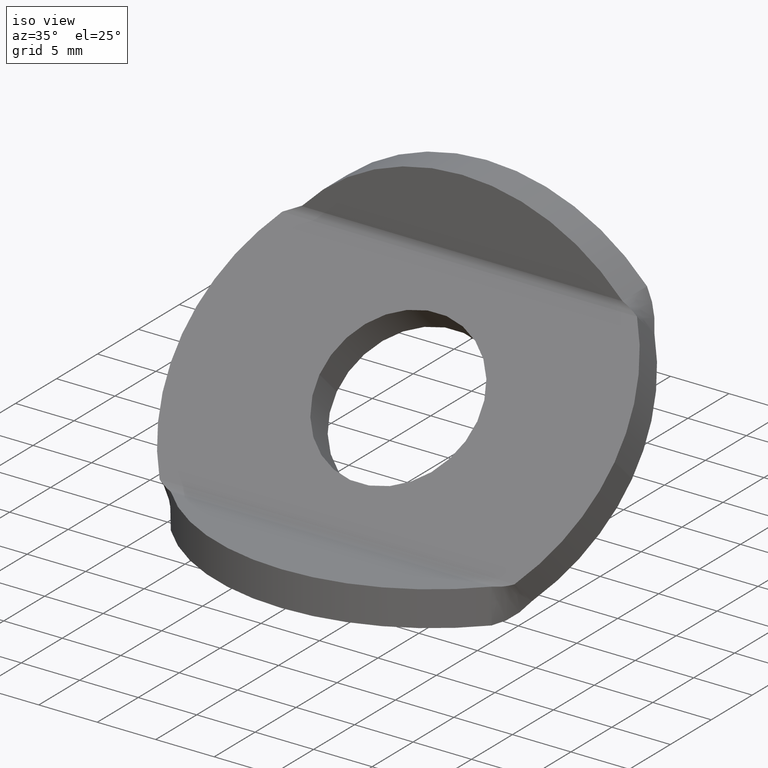
[diagram: clean part render]
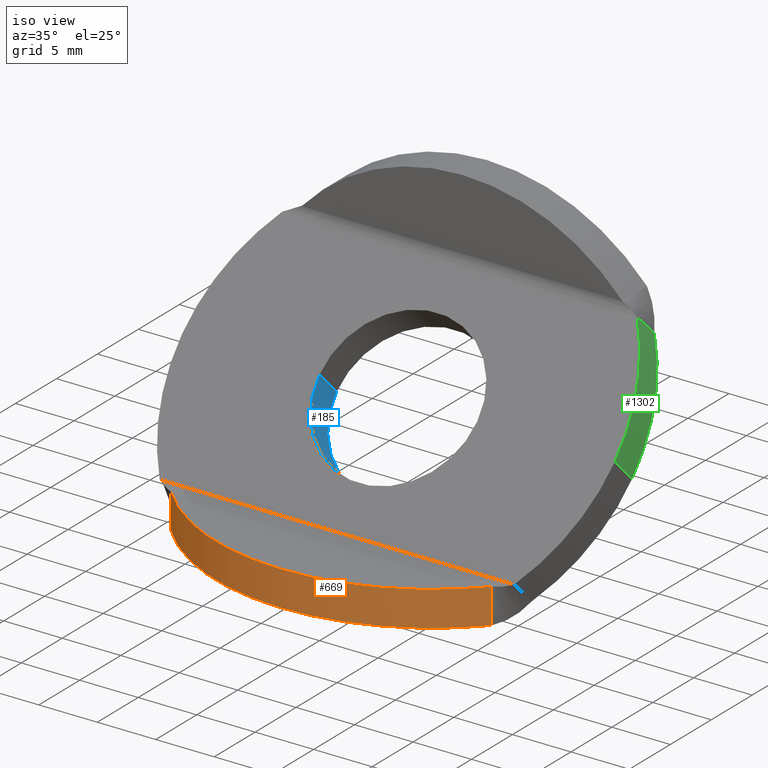
[diagram: same view with three faces highlighted in distinct colors, each labeled with its STEP entity id]
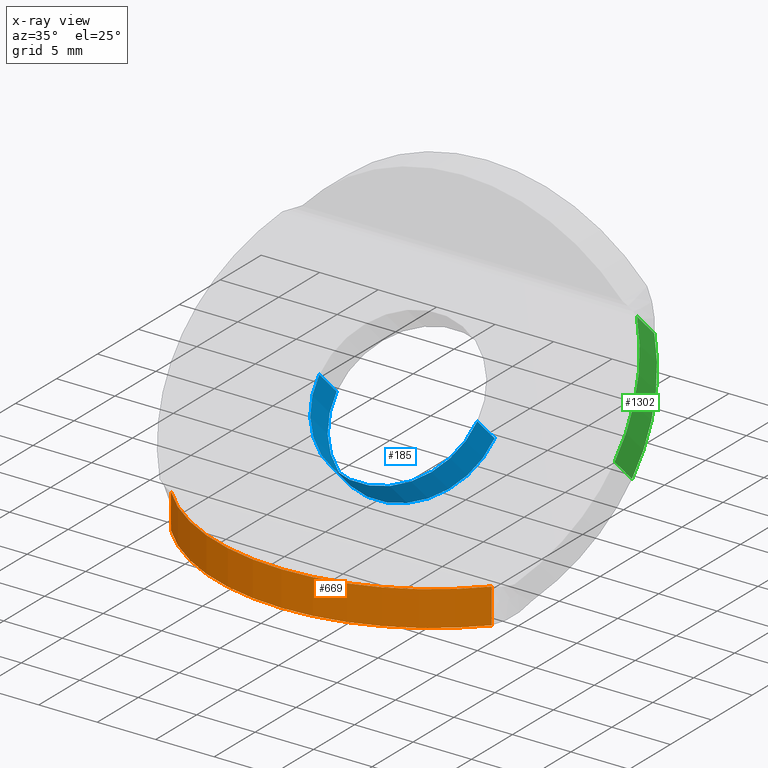
[diagram: x-ray of the same camera — body ghosted, the three highlighted faces saturated]
A machine part, iso view with three faces highlighted in distinct colors.
The next image is the same camera in x-ray (body ghosted, the three faces saturated) — at least one of them is partly hidden behind the body in this view.
Their STEP definitions:

[orange] entity #669 — the highlighted cylindrical surface (partial cylindrical patch) has radius 18.5 mm, axis along (0, 0, 1).
#347=CARTESIAN_POINT('',(34.380578876254539,-7.367725169750537,0.0));
#348=VERTEX_POINT('',#347);
#360=CARTESIAN_POINT('',(34.380578876254539,-7.367725169750537,3.000000000000000));
#361=VERTEX_POINT('',#360);
#371=CARTESIAN_POINT('',(34.380578876254539,-7.367725169750536,1.682899955775679));
#372=VERTEX_POINT('',#371);
#373=CARTESIAN_POINT('',(34.380578876254539,-7.367725169750536,1.682899955775679));
#374=DIRECTION('',(0.0,0.0,1.0));
#375=VECTOR('',#374,1.317100044224322);
#376=LINE('',#373,#375);
#377=EDGE_CURVE('',#372,#361,#376,.T.);
#379=CARTESIAN_POINT('',(34.380578876254539,-7.367725169750537,0.0));
#380=DIRECTION('',(0.0,0.0,1.0));
#381=VECTOR('',#380,1.682899955775679);
#382=LINE('',#379,#381);
#383=EDGE_CURVE('',#348,#372,#382,.T.);
#549=CARTESIAN_POINT('',(6.942244869217999,-7.367725169750546,0.0));
#550=VERTEX_POINT('',#549);
#560=CARTESIAN_POINT('',(6.942244869218008,-7.367725169750548,1.682899955775387));
#561=VERTEX_POINT('',#560);
#562=CARTESIAN_POINT('',(6.942244869218008,-7.367725169750548,1.682899955775387));
#563=DIRECTION('',(0.0,0.0,-1.0));
#564=VECTOR('',#563,1.682899955775387);
#565=LINE('',#562,#564);
#566=EDGE_CURVE('',#561,#550,#565,.T.);
#568=CARTESIAN_POINT('',(6.942244869217999,-7.367725169750546,3.000000000000000));
#569=VERTEX_POINT('',#568);
#570=CARTESIAN_POINT('',(6.942244869217999,-7.367725169750546,3.000000000000000));
#571=DIRECTION('',(0.0,0.0,-1.0));
#572=VECTOR('',#571,1.317100044224613);
#573=LINE('',#570,#572);
#574=EDGE_CURVE('',#569,#561,#573,.T.);
#640=CARTESIAN_POINT('',(20.661411872736263,5.043336699790500,3.000000000000000));
#641=DIRECTION('',(0.0,0.0,-1.0));
#642=DIRECTION('',(-1.0,0.0,0.0));
#643=AXIS2_PLACEMENT_3D('',#640,#641,#642);
#644=CIRCLE('',#643,18.500000000000000);
#645=EDGE_CURVE('',#361,#569,#644,.T.);
#650=CARTESIAN_POINT('',(20.661411872736263,5.043336699790500,0.0));
#651=DIRECTION('',(0.0,0.0,1.0));
#652=DIRECTION('',(-1.0,0.0,0.0));
#653=AXIS2_PLACEMENT_3D('',#650,#651,#652);
#654=CYLINDRICAL_SURFACE('',#653,18.500000000000000);
#655=ORIENTED_EDGE('',*,*,#383,.T.);
#656=ORIENTED_EDGE('',*,*,#377,.T.);
#657=ORIENTED_EDGE('',*,*,#645,.T.);
#658=ORIENTED_EDGE('',*,*,#574,.T.);
#659=ORIENTED_EDGE('',*,*,#566,.T.);
#660=CARTESIAN_POINT('',(20.661411872736263,5.043336699790500,0.0));
#661=DIRECTION('',(0.0,0.0,-1.0));
#662=DIRECTION('',(-1.0,0.0,0.0));
#663=AXIS2_PLACEMENT_3D('',#660,#661,#662);
#664=CIRCLE('',#663,18.500000000000000);
#665=EDGE_CURVE('',#348,#550,#664,.T.);
#666=ORIENTED_EDGE('',*,*,#665,.F.);
#667=EDGE_LOOP('',(#655,#656,#657,#658,#659,#666));
#668=FACE_OUTER_BOUND('',#667,.T.);
#669=ADVANCED_FACE('',(#668),#654,.T.);

[blue] entity #185 — the highlighted cylindrical surface (partial cylindrical patch) has radius 6.75 mm, axis along (0, -0.7071, 0.7071).
#144=CARTESIAN_POINT('',(20.661411872736263,2.948211912607984,8.659082832866146));
#145=DIRECTION('',(2.166933E-016,-0.707106781186548,0.707106781186547));
#146=DIRECTION('',(-1.0,0.0,0.0));
#147=AXIS2_PLACEMENT_3D('',#144,#145,#146);
#148=CYLINDRICAL_SURFACE('',#147,6.750000000000000);
#149=CARTESIAN_POINT('',(13.911411872736263,0.826891569048341,10.780403176425791));
#150=VERTEX_POINT('',#149);
#151=CARTESIAN_POINT('',(13.911411872736263,2.948211912607985,8.659082832866146));
#152=VERTEX_POINT('',#151);
#153=CARTESIAN_POINT('',(13.911411872736263,0.826891569048341,10.780403176425791));
#154=DIRECTION('',(0.0,0.707106781186547,-0.707106781186548));
#155=VECTOR('',#154,3.000000000000004);
#156=LINE('',#153,#155);
#157=EDGE_CURVE('',#150,#152,#156,.T.);
#158=ORIENTED_EDGE('',*,*,#157,.F.);
#159=CARTESIAN_POINT('',(27.411411872736267,0.826891569048343,10.780403176425786));
#160=VERTEX_POINT('',#159);
#161=CARTESIAN_POINT('',(20.661411872736263,0.826891569048342,10.780403176425787));
#162=DIRECTION('',(0.0,0.707106781186548,-0.707106781186547));
#163=DIRECTION('',(-1.0,0.0,0.0));
#164=AXIS2_PLACEMENT_3D('',#161,#162,#163);
#165=CIRCLE('',#164,6.750000000000000);
#166=EDGE_CURVE('',#160,#150,#165,.T.);
#167=ORIENTED_EDGE('',*,*,#166,.F.);
#168=CARTESIAN_POINT('',(27.411411872736267,2.948211912607985,8.659082832866144));
#169=VERTEX_POINT('',#168);
#170=CARTESIAN_POINT('',(27.411411872736267,2.948211912607985,8.659082832866144));
#171=DIRECTION('',(0.0,-0.707106781186548,0.707106781186547));
#172=VECTOR('',#171,3.000000000000000);
#173=LINE('',#170,#172);
#174=EDGE_CURVE('',#169,#160,#173,.T.);
#175=ORIENTED_EDGE('',*,*,#174,.F.);
#176=CARTESIAN_POINT('',(20.661411872736263,2.948211912607984,8.659082832866146));
#177=DIRECTION('',(0.0,-0.707106781186548,0.707106781186547));
#178=DIRECTION('',(-1.0,0.0,0.0));
#179=AXIS2_PLACEMENT_3D('',#176,#177,#178);
#180=CIRCLE('',#179,6.750000000000000);
#181=EDGE_CURVE('',#152,#169,#180,.T.);
#182=ORIENTED_EDGE('',*,*,#181,.F.);
#183=EDGE_LOOP('',(#158,#167,#175,#182));
#184=FACE_OUTER_BOUND('',#183,.T.);
#185=ADVANCED_FACE('',(#184),#148,.F.);

[green] entity #1302 — the highlighted cylindrical surface (partial cylindrical patch) has radius 18.5 mm, axis along (0, -0.7071, 0.7071).
#99=CARTESIAN_POINT('',(39.161411872736267,0.826891569048343,10.780403176425780));
#100=VERTEX_POINT('',#99);
#101=CARTESIAN_POINT('',(39.161411872736267,2.948211912607984,8.659082832866140));
#102=VERTEX_POINT('',#101);
#103=CARTESIAN_POINT('',(39.161411872736267,0.826891569048343,10.780403176425780));
#104=DIRECTION('',(0.0,0.707106781186548,-0.707106781186547));
#105=VECTOR('',#104,2.999999999999997);
#106=LINE('',#103,#105);
#107=EDGE_CURVE('',#100,#102,#106,.T.);
#799=CARTESIAN_POINT('',(35.831263199275767,8.314401526660676,18.267913134038118));
#800=VERTEX_POINT('',#799);
#801=CARTESIAN_POINT('',(20.661411872736263,0.826891569048342,10.780403176425787));
#802=DIRECTION('',(0.0,0.707106781186548,-0.707106781186547));
#803=DIRECTION('',(-1.0,0.0,0.0));
#804=AXIS2_PLACEMENT_3D('',#801,#802,#803);
#805=CIRCLE('',#804,18.500000000000000);
#806=EDGE_CURVE('',#800,#100,#805,.T.);
#876=CARTESIAN_POINT('',(35.831263199275767,10.435721870220318,16.146592790478479));
#877=VERTEX_POINT('',#876);
#1243=CARTESIAN_POINT('',(35.831263199275760,9.249773413691324,17.332541247007470));
#1244=VERTEX_POINT('',#1243);
#1245=CARTESIAN_POINT('',(35.831263199275760,9.249773413691324,17.332541247007470));
#1246=DIRECTION('',(5.371442E-015,-0.707106781186548,0.707106781186548));
#1247=VECTOR('',#1246,1.322815608501257);
#1248=LINE('',#1245,#1247);
#1249=EDGE_CURVE('',#1244,#800,#1248,.T.);
#1251=CARTESIAN_POINT('',(35.831263199275767,10.435721870220318,16.146592790478479));
#1252=DIRECTION('',(-4.236521E-015,-0.707106781186549,0.707106781186546));
#1253=VECTOR('',#1252,1.677184391498740);
#1254=LINE('',#1251,#1253);
#1255=EDGE_CURVE('',#877,#1244,#1254,.T.);
#1275=CARTESIAN_POINT('',(20.661411872736263,2.948211912607984,8.659082832866146));
#1276=DIRECTION('',(0.0,0.707106781186548,-0.707106781186547));
#1277=DIRECTION('',(-1.0,0.0,0.0));
#1278=AXIS2_PLACEMENT_3D('',#1275,#1276,#1277);
#1279=CIRCLE('',#1278,18.500000000000000);
#1280=EDGE_CURVE('',#877,#102,#1279,.T.);
#1290=CARTESIAN_POINT('',(20.661411872736263,2.948211912607984,8.659082832866146));
#1291=DIRECTION('',(2.166933E-016,-0.707106781186548,0.707106781186547));
#1292=DIRECTION('',(-1.0,0.0,0.0));
#1293=AXIS2_PLACEMENT_3D('',#1290,#1291,#1292);
#1294=CYLINDRICAL_SURFACE('',#1293,18.500000000000000);
#1295=ORIENTED_EDGE('',*,*,#107,.T.);
#1296=ORIENTED_EDGE('',*,*,#1280,.F.);
#1297=ORIENTED_EDGE('',*,*,#1255,.T.);
#1298=ORIENTED_EDGE('',*,*,#1249,.T.);
#1299=ORIENTED_EDGE('',*,*,#806,.T.);
#1300=EDGE_LOOP('',(#1295,#1296,#1297,#1298,#1299));
#1301=FACE_OUTER_BOUND('',#1300,.T.);
#1302=ADVANCED_FACE('',(#1301),#1294,.T.);